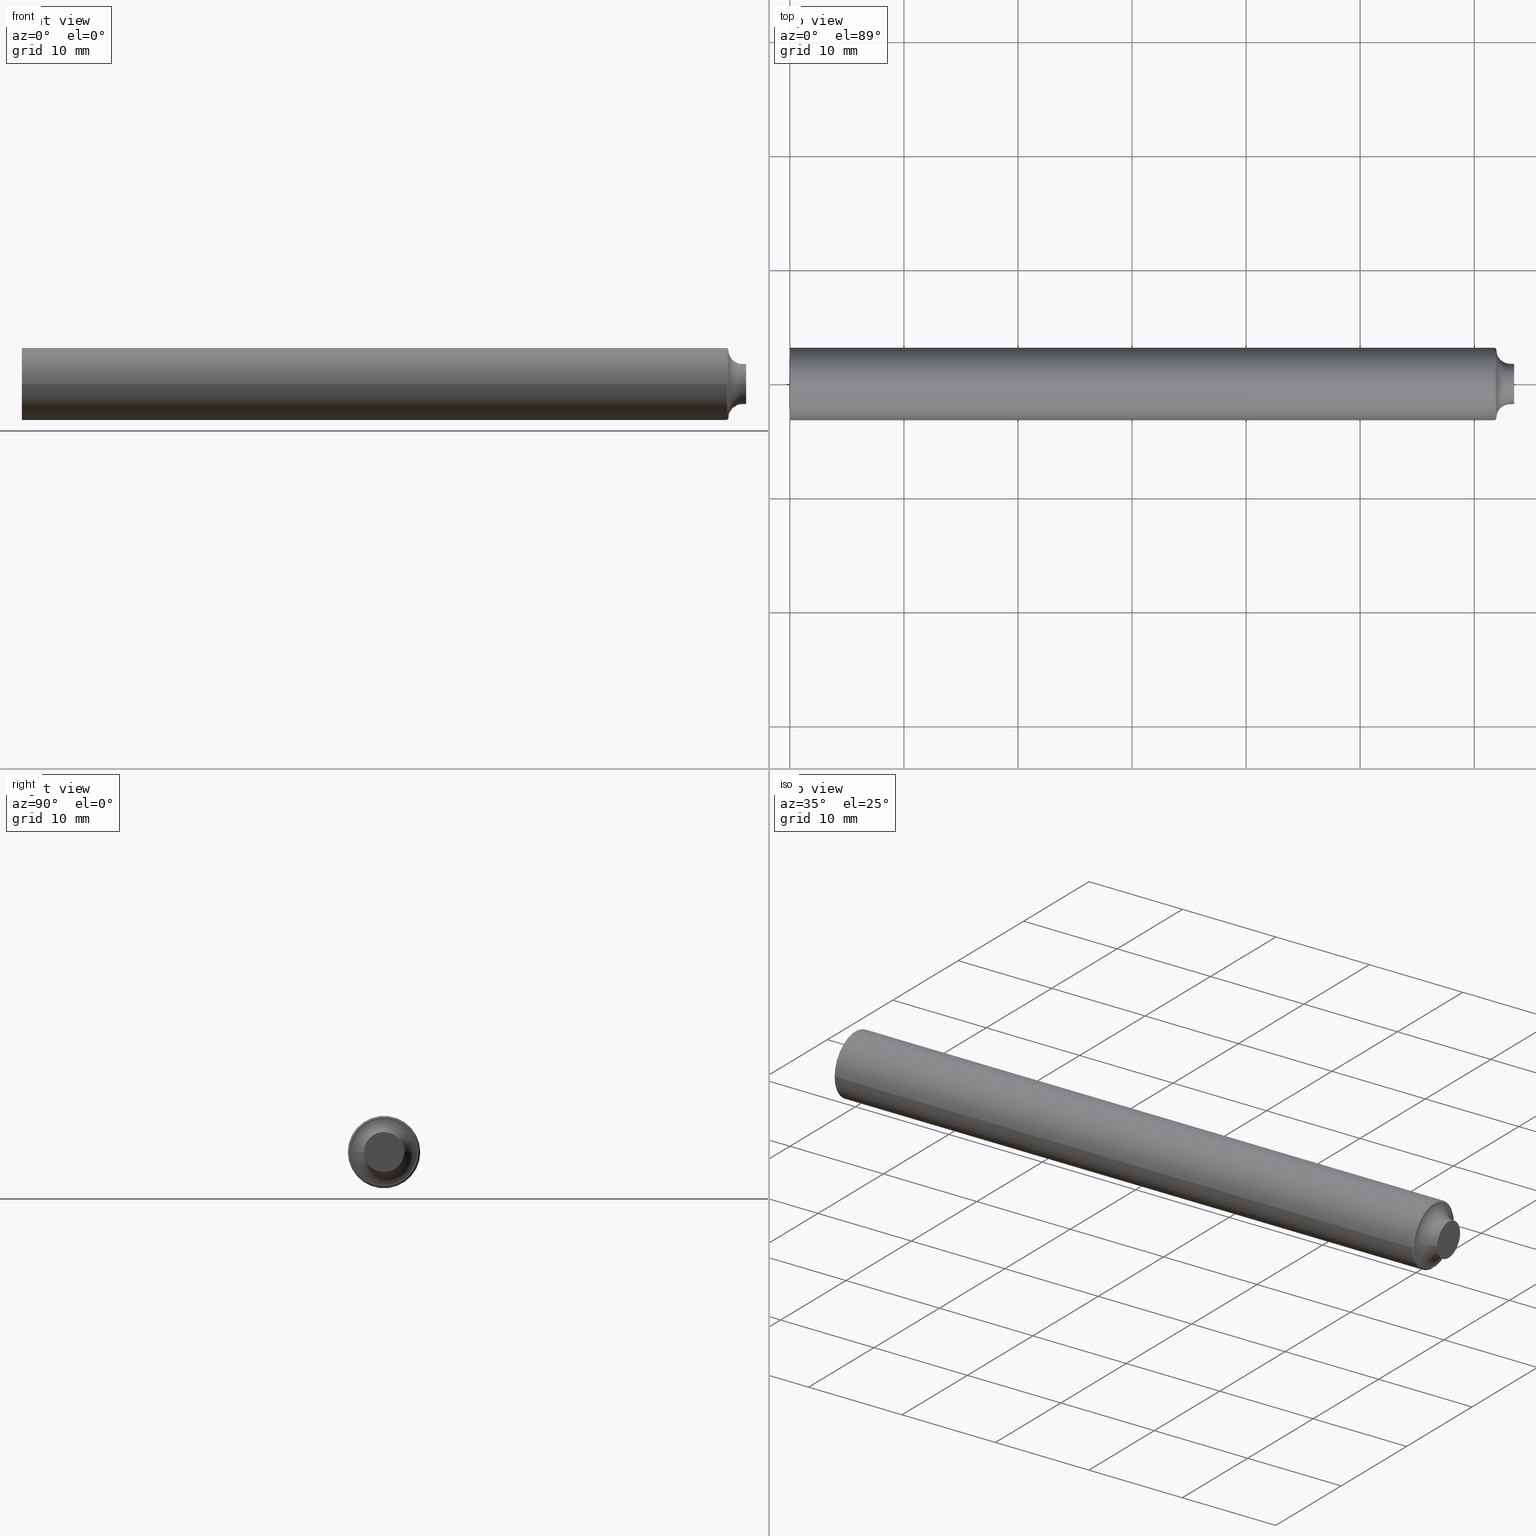
[diagram: canonical four-view strip — front | top / right | iso, engineering-drawing reading convention]
A machine part, canonical four-view strip (front | top / right | iso — engineering-drawing reading convention). The complete STEP part file that produces these views, byte-faithful:
ISO-10303-21;
HEADER;
FILE_DESCRIPTION (( 'STEP AP214' ),
    '1' );
FILE_NAME ('CR250046.step',
    '2025-08-29T21:05:24',
    ( '' ),
    ( '' ),
    'SwSTEP 2.0',
    'SolidWorks 2024',
    '' );
FILE_SCHEMA (( 'AUTOMOTIVE_DESIGN' ));
ENDSEC;

DATA;
#1 = FACE_OUTER_BOUND ( 'NONE', #297, .T. ) ;
#2 = DIRECTION ( 'NONE',  ( -1.000000000000000000, -4.887607864318309822E-21, -0.000000000000000000 ) ) ;
#3 = EDGE_CURVE ( 'NONE', #325, #163, #84, .T. ) ;
#4 = DIRECTION ( 'NONE',  ( -1.000000000000000000, -4.887607864318309822E-21, -0.000000000000000000 ) ) ;
#5 = DIRECTION ( 'NONE',  ( 0.000000000000000000, -1.000000000000000000, 0.000000000000000000 ) ) ;
#6 = DIRECTION ( 'NONE',  ( -1.000000000000000000, -4.887607864318309822E-21, -0.000000000000000000 ) ) ;
#7 = VECTOR ( 'NONE', #309, 39.37007874015748854 ) ;
#8 = EDGE_CURVE ( 'NONE', #266, #131, #232, .T. ) ;
#9 = DIRECTION ( 'NONE',  ( -0.9986295347545737222, -0.05233595624294518078, 0.000000000000000000 ) ) ;
#10 = DIRECTION ( 'NONE',  ( 0.000000000000000000, -1.000000000000000000, 0.000000000000000000 ) ) ;
#11 = FILL_AREA_STYLE_COLOUR ( '', #117 ) ;
#12 = PRODUCT_RELATED_PRODUCT_CATEGORY ( 'part', '', ( #256 ) ) ;
#13 = APPLICATION_PROTOCOL_DEFINITION ( 'draft international standard', 'automotive_design', 1998, #203 ) ;
#14 = VERTEX_POINT ( 'NONE', #148 ) ;
#15 = DIRECTION ( 'NONE',  ( 0.000000000000000000, 0.000000000000000000, 1.000000000000000000 ) ) ;
#16 = ORIENTED_EDGE ( 'NONE', *, *, #179, .F. ) ;
#17 =( NAMED_UNIT ( * ) PLANE_ANGLE_UNIT ( ) SI_UNIT ( $, .RADIAN. ) );
#18 = ORIENTED_EDGE ( 'NONE', *, *, #22, .T. ) ;
#19 = CARTESIAN_POINT ( 'NONE',  ( 2.433660895705829663, -0.1250000000000000000, 0.000000000000000000 ) ) ;
#20 = CARTESIAN_POINT ( 'NONE',  ( 2.500000000000000000, 1.221901966079577606E-20, 0.000000000000000000 ) ) ;
#21 = CONICAL_SURFACE ( 'NONE', #208, 0.1135295046115351730, 1.518436449235101682 ) ;
#22 = EDGE_CURVE ( 'NONE', #324, #172, #259, .T. ) ;
#23 = FACE_OUTER_BOUND ( 'NONE', #223, .T. ) ;
#24 = DIRECTION ( 'NONE',  ( -0.05233595624290892506, 0.9986295347545757206, 1.222968463271201625E-16 ) ) ;
#25 = CARTESIAN_POINT ( 'NONE',  ( 2.482529504611534765, 0.07000000000000006217, 8.572527594031479661E-18 ) ) ;
#26 = AXIS2_PLACEMENT_3D ( 'NONE', #168, #33, #5 ) ;
#27 = MANIFOLD_SOLID_BREP ( 'Revolve1', #331 ) ;
#28 = DIRECTION ( 'NONE',  ( 0.000000000000000000, -1.000000000000000000, 0.000000000000000000 ) ) ;
#29 = CARTESIAN_POINT ( 'NONE',  ( 2.438660895705829557, 1.191921817225734586E-20, 0.000000000000000000 ) ) ;
#30 = DIRECTION ( 'NONE',  ( -1.000000000000000000, -4.887607864318309822E-21, -0.000000000000000000 ) ) ;
#31 = EDGE_CURVE ( 'NONE', #82, #73, #79, .T. ) ;
#32 = AXIS2_PLACEMENT_3D ( 'NONE', #45, #146, #250 ) ;
#33 = DIRECTION ( 'NONE',  ( -1.000000000000000000, -4.887607864318309822E-21, -0.000000000000000000 ) ) ;
#34 = LINE ( 'NONE', #310, #77 ) ;
#35 = CARTESIAN_POINT ( 'NONE',  ( 2.500000000000000000, 1.221901966079577606E-20, 0.000000000000000000 ) ) ;
#36 = ADVANCED_FACE ( 'NONE', ( #181 ), #118, .T. ) ;
#37 = ORIENTED_EDGE ( 'NONE', *, *, #333, .T. ) ;
#38 = CIRCLE ( 'NONE', #54, 0.1199999999999998984 ) ;
#39 = DIRECTION ( 'NONE',  ( 0.000000000000000000, -1.000000000000000000, 0.000000000000000000 ) ) ;
#40 = DIRECTION ( 'NONE',  ( -1.000000000000000000, -4.887607864318309822E-21, -0.000000000000000000 ) ) ;
#41 = ORIENTED_EDGE ( 'NONE', *, *, #249, .T. ) ;
#42 = EDGE_CURVE ( 'NONE', #131, #128, #178, .T. ) ;
#43 = CARTESIAN_POINT ( 'NONE',  ( 2.484936958598710444, 0.1159369585987104073, 1.419818252507899033E-17 ) ) ;
#44 = ORIENTED_EDGE ( 'NONE', *, *, #127, .T. ) ;
#45 = CARTESIAN_POINT ( 'NONE',  ( 2.433660895705829663, 1.189478013293575589E-20, 0.000000000000000000 ) ) ;
#46 = ADVANCED_FACE ( 'NONE', ( #1 ), #298, .T. ) ;
#47 = ORIENTED_EDGE ( 'NONE', *, *, #22, .F. ) ;
#48 = DIRECTION ( 'NONE',  ( 0.000000000000000000, -1.000000000000000000, 0.000000000000000000 ) ) ;
#49 = AXIS2_PLACEMENT_3D ( 'NONE', #180, #183, #136 ) ;
#50 = DIRECTION ( 'NONE',  ( -1.000000000000000000, -4.887607864318309822E-21, -0.000000000000000000 ) ) ;
#51 = EDGE_CURVE ( 'NONE', #14, #163, #260, .T. ) ;
#52 = PRODUCT_DEFINITION_CONTEXT ( 'detailed design', #203, 'design' ) ;
#53 = CARTESIAN_POINT ( 'NONE',  ( 2.438660895705829557, 0.1199999999999998984, 1.469576158976822752E-17 ) ) ;
#54 = AXIS2_PLACEMENT_3D ( 'NONE', #277, #50, #279 ) ;
#55 = CONICAL_SURFACE ( 'NONE', #251, 0.1199999999999998984, 0.7853981633974500554 ) ;
#56 = CIRCLE ( 'NONE', #245, 0.1250000000000000000 ) ;
#57 = DIRECTION ( 'NONE',  ( 4.887607864318309822E-21, -1.000000000000000000, 0.000000000000000000 ) ) ;
#58 = CARTESIAN_POINT ( 'NONE',  ( 2.500000000000000000, -0.06908441013371593997, 0.000000000000000000 ) ) ;
#59 = ORIENTED_EDGE ( 'NONE', *, *, #96, .F. ) ;
#60 = DIRECTION ( 'NONE',  ( -1.000000000000000000, -4.887607864318309822E-21, -0.000000000000000000 ) ) ;
#61 = DIRECTION ( 'NONE',  ( 1.000000000000000000, 4.887607864318309822E-21, 0.000000000000000000 ) ) ;
#62 = CONICAL_SURFACE ( 'NONE', #169, 0.06908441013371593997, 0.05235987755983124992 ) ;
#63 = EDGE_LOOP ( 'NONE', ( #204, #95, #197, #323 ) ) ;
#64 = EDGE_CURVE ( 'NONE', #172, #324, #98, .T. ) ;
#65 = ORIENTED_EDGE ( 'NONE', *, *, #295, .F. ) ;
#66 = FACE_OUTER_BOUND ( 'NONE', #103, .T. ) ;
#67 = AXIS2_PLACEMENT_3D ( 'NONE', #307, #233, #156 ) ;
#68 =( GEOMETRIC_REPRESENTATION_CONTEXT ( 3 ) GLOBAL_UNCERTAINTY_ASSIGNED_CONTEXT ( ( #89 ) ) GLOBAL_UNIT_ASSIGNED_CONTEXT ( ( #71, #17, #94 ) ) REPRESENTATION_CONTEXT ( 'NONE', 'WORKASPACE' ) );
#69 = ORIENTED_EDGE ( 'NONE', *, *, #70, .T. ) ;
#70 = EDGE_CURVE ( 'NONE', #128, #14, #38, .T. ) ;
#71 =( CONVERSION_BASED_UNIT ( 'INCH', #198 ) LENGTH_UNIT ( ) NAMED_UNIT ( #205 ) );
#72 = ORIENTED_EDGE ( 'NONE', *, *, #127, .F. ) ;
#73 = VERTEX_POINT ( 'NONE', #25 ) ;
#74 = LINE ( 'NONE', #258, #272 ) ;
#75 = PRODUCT_DEFINITION ( 'UNKNOWN', '', #99, #52 ) ;
#76 = VECTOR ( 'NONE', #288, 39.37007874015748854 ) ;
#77 = VECTOR ( 'NONE', #216, 39.37007874015748854 ) ;
#78 =( NAMED_UNIT ( * ) SI_UNIT ( $, .STERADIAN. ) SOLID_ANGLE_UNIT ( ) );
#79 = CIRCLE ( 'NONE', #320, 0.07000000000000006217 ) ;
#80 =( LENGTH_UNIT ( ) NAMED_UNIT ( * ) SI_UNIT ( $, .METRE. ) );
#81 = FACE_OUTER_BOUND ( 'NONE', #139, .T. ) ;
#82 = VERTEX_POINT ( 'NONE', #133 ) ;
#83 = DIRECTION ( 'NONE',  ( 4.887607864318309822E-21, -1.000000000000000000, 0.000000000000000000 ) ) ;
#84 = CIRCLE ( 'NONE', #32, 0.1250000000000000000 ) ;
#85 = DIRECTION ( 'NONE',  ( 4.887607864318309822E-21, -1.000000000000000000, 0.000000000000000000 ) ) ;
#86 = ORIENTED_EDGE ( 'NONE', *, *, #51, .F. ) ;
#87 = DIRECTION ( 'NONE',  ( 4.887607864318309822E-21, -1.000000000000000000, 0.000000000000000000 ) ) ;
#88 = FACE_OUTER_BOUND ( 'NONE', #202, .T. ) ;
#89 = UNCERTAINTY_MEASURE_WITH_UNIT (LENGTH_MEASURE( 1.000000000000000082E-05 ), #71, 'distance_accuracy_value', 'NONE');
#90 = EDGE_CURVE ( 'NONE', #328, #177, #292, .T. ) ;
#91 = AXIS2_PLACEMENT_3D ( 'NONE', #97, #40, #10 ) ;
#92 = ORIENTED_EDGE ( 'NONE', *, *, #96, .T. ) ;
#93 = ORIENTED_EDGE ( 'NONE', *, *, #42, .F. ) ;
#94 =( NAMED_UNIT ( * ) SI_UNIT ( $, .STERADIAN. ) SOLID_ANGLE_UNIT ( ) );
#95 = ORIENTED_EDGE ( 'NONE', *, *, #295, .T. ) ;
#96 = EDGE_CURVE ( 'NONE', #14, #128, #221, .T. ) ;
#97 = CARTESIAN_POINT ( 'NONE',  ( 2.439000000000000057, 1.192087558107235888E-20, 0.000000000000000000 ) ) ;
#98 = CIRCLE ( 'NONE', #49, 0.06908441013371593997 ) ;
#99 = PRODUCT_DEFINITION_FORMATION_WITH_SPECIFIED_SOURCE ( 'ANY', '', #256, .NOT_KNOWN. ) ;
#100 = EDGE_LOOP ( 'NONE', ( #72, #269, #286, #59 ) ) ;
#101 = AXIS2_PLACEMENT_3D ( 'NONE', #20, #275, #48 ) ;
#102 = CARTESIAN_POINT ( 'NONE',  ( 2.500000000000000000, 0.06908441013371593997, 8.516463884077649517E-18 ) ) ;
#103 = EDGE_LOOP ( 'NONE', ( #248, #316, #195, #273 ) ) ;
#104 = ADVANCED_BREP_SHAPE_REPRESENTATION ( 'CR250046', ( #27, #151 ), #68 ) ;
#105 = DIRECTION ( 'NONE',  ( 4.887607864318309822E-21, -1.000000000000000000, 0.000000000000000000 ) ) ;
#106 = ADVANCED_FACE ( 'NONE', ( #23 ), #134, .T. ) ;
#107 = CARTESIAN_POINT ( 'NONE',  ( 0.000000000000000000, 0.000000000000000000, 0.000000000000000000 ) ) ;
#108 = AXIS2_PLACEMENT_3D ( 'NONE', #137, #2, #162 ) ;
#109 = DIRECTION ( 'NONE',  ( -1.000000000000000000, -4.887607864318309822E-21, -0.000000000000000000 ) ) ;
#110 = DIRECTION ( 'NONE',  ( -1.000000000000000000, -4.887607864318309822E-21, -0.000000000000000000 ) ) ;
#111 = CARTESIAN_POINT ( 'NONE',  ( 2.439000000000000057, -0.1135295046115351730, 0.000000000000000000 ) ) ;
#112 = CARTESIAN_POINT ( 'NONE',  ( 2.484936958598710444, 0.000000000000000000, 0.000000000000000000 ) ) ;
#113 = ORIENTED_EDGE ( 'NONE', *, *, #242, .T. ) ;
#114 = DIRECTION ( 'NONE',  ( -1.000000000000000000, -4.887607864318309822E-21, -0.000000000000000000 ) ) ;
#115 = ORIENTED_EDGE ( 'NONE', *, *, #90, .T. ) ;
#116 = CARTESIAN_POINT ( 'NONE',  ( 6.109509830397887278E-22, -0.1250000000000000000, 0.000000000000000000 ) ) ;
#117 = COLOUR_RGB ( '',0.7921568627450980005, 0.8196078431372548767, 0.9333333333333333481 ) ;
#118 = CONICAL_SURFACE ( 'NONE', #67, 0.1135295046115351730, 1.518436449235101682 ) ;
#119 = CARTESIAN_POINT ( 'NONE',  ( 2.439000000000000057, 0.1135295046115346596, 1.390335444313005994E-17 ) ) ;
#120 = CARTESIAN_POINT ( 'NONE',  ( -6.109509830397887278E-22, 0.1250000000000000000, 1.530808498934191509E-17 ) ) ;
#121 = ORIENTED_EDGE ( 'NONE', *, *, #51, .T. ) ;
#122 = FILL_AREA_STYLE ('',( #11 ) ) ;
#123 = CARTESIAN_POINT ( 'NONE',  ( 2.484936958598710444, 0.000000000000000000, 0.000000000000000000 ) ) ;
#124 = TOROIDAL_SURFACE ( 'NONE', #215, 0.1159369585987104073, 0.04599999999999998535 ) ;
#125 = ORIENTED_EDGE ( 'NONE', *, *, #31, .F. ) ;
#126 = SHAPE_DEFINITION_REPRESENTATION ( #220, #104 ) ;
#127 = EDGE_CURVE ( 'NONE', #266, #14, #74, .T. ) ;
#128 = VERTEX_POINT ( 'NONE', #330 ) ;
#129 = ORIENTED_EDGE ( 'NONE', *, *, #249, .F. ) ;
#130 = TOROIDAL_SURFACE ( 'NONE', #173, 0.1159369585987104073, 0.04599999999999998535 ) ;
#131 = VERTEX_POINT ( 'NONE', #207 ) ;
#132 = ADVANCED_FACE ( 'NONE', ( #184 ), #326, .T. ) ;
#133 = CARTESIAN_POINT ( 'NONE',  ( 2.482529504611534765, -0.07000000000000006217, 0.000000000000000000 ) ) ;
#134 = CYLINDRICAL_SURFACE ( 'NONE', #214, 0.1250000000000000000 ) ;
#135 = CIRCLE ( 'NONE', #26, 0.07000000000000006217 ) ;
#136 = DIRECTION ( 'NONE',  ( 0.000000000000000000, -1.000000000000000000, 0.000000000000000000 ) ) ;
#137 = CARTESIAN_POINT ( 'NONE',  ( 2.433660895705829663, 1.189478013293575589E-20, 0.000000000000000000 ) ) ;
#138 = CARTESIAN_POINT ( 'NONE',  ( 0.000000000000000000, 0.1250000000000000000, 1.530808498934191509E-17 ) ) ;
#139 = EDGE_LOOP ( 'NONE', ( #141, #47 ) ) ;
#140 = DIRECTION ( 'NONE',  ( 0.000000000000000000, -1.000000000000000000, 0.000000000000000000 ) ) ;
#141 = ORIENTED_EDGE ( 'NONE', *, *, #64, .F. ) ;
#142 = LINE ( 'NONE', #120, #160 ) ;
#143 = AXIS2_PLACEMENT_3D ( 'NONE', #187, #61, #243 ) ;
#144 = LINE ( 'NONE', #116, #182 ) ;
#145 = ADVANCED_FACE ( 'NONE', ( #264 ), #130, .F. ) ;
#146 = DIRECTION ( 'NONE',  ( -1.000000000000000000, -4.887607864318309822E-21, -0.000000000000000000 ) ) ;
#147 = ORIENTED_EDGE ( 'NONE', *, *, #90, .F. ) ;
#148 = CARTESIAN_POINT ( 'NONE',  ( 2.438660895705829557, 0.1199999999999998845, 1.469576158976822443E-17 ) ) ;
#149 = DIRECTION ( 'NONE',  ( -1.000000000000000000, -4.887607864318309822E-21, -0.000000000000000000 ) ) ;
#150 = STYLED_ITEM ( 'NONE', ( #332 ), #27 ) ;
#151 = AXIS2_PLACEMENT_3D ( 'NONE', #170, #15, #196 ) ;
#152 = CARTESIAN_POINT ( 'NONE',  ( 2.482529504611534765, 1.213363073014157413E-20, 0.000000000000000000 ) ) ;
#153 = ADVANCED_FACE ( 'NONE', ( #291 ), #318, .F. ) ;
#154 = UNCERTAINTY_MEASURE_WITH_UNIT (LENGTH_MEASURE( 1.000000000000000082E-05 ), #230, 'distance_accuracy_value', 'NONE');
#155 = CARTESIAN_POINT ( 'NONE',  ( 2.438660895705829557, 1.191921817225734586E-20, 0.000000000000000000 ) ) ;
#156 = DIRECTION ( 'NONE',  ( 0.000000000000000000, -1.000000000000000000, 0.000000000000000000 ) ) ;
#157 = DIRECTION ( 'NONE',  ( -1.000000000000000000, -4.887607864318309822E-21, -0.000000000000000000 ) ) ;
#158 = AXIS2_PLACEMENT_3D ( 'NONE', #29, #110, #28 ) ;
#159 = AXIS2_PLACEMENT_3D ( 'NONE', #43, #296, #225 ) ;
#160 = VECTOR ( 'NONE', #4, 39.37007874015748143 ) ;
#161 = CARTESIAN_POINT ( 'NONE',  ( 2.500000000000000000, 0.06908441013371593997, 0.000000000000000000 ) ) ;
#162 = DIRECTION ( 'NONE',  ( 0.000000000000000000, -1.000000000000000000, 0.000000000000000000 ) ) ;
#163 = VERTEX_POINT ( 'NONE', #165 ) ;
#164 = EDGE_CURVE ( 'NONE', #325, #328, #144, .T. ) ;
#165 = CARTESIAN_POINT ( 'NONE',  ( 2.433660895705829663, 0.1250000000000000000, 1.530808498934191509E-17 ) ) ;
#166 = ORIENTED_EDGE ( 'NONE', *, *, #227, .F. ) ;
#167 = DIRECTION ( 'NONE',  ( -1.000000000000000000, -4.887607864318309822E-21, -0.000000000000000000 ) ) ;
#168 = CARTESIAN_POINT ( 'NONE',  ( 2.482529504611534765, 1.213363073014157413E-20, 0.000000000000000000 ) ) ;
#169 = AXIS2_PLACEMENT_3D ( 'NONE', #35, #213, #241 ) ;
#170 = CARTESIAN_POINT ( 'NONE',  ( 0.000000000000000000, 0.000000000000000000, 0.000000000000000000 ) ) ;
#171 = SURFACE_SIDE_STYLE ('',( #321 ) ) ;
#172 = VERTEX_POINT ( 'NONE', #287 ) ;
#173 = AXIS2_PLACEMENT_3D ( 'NONE', #112, #217, #312 ) ;
#174 = PRODUCT_CONTEXT ( 'NONE', #236, 'mechanical' ) ;
#175 = ORIENTED_EDGE ( 'NONE', *, *, #70, .F. ) ;
#176 = ORIENTED_EDGE ( 'NONE', *, *, #209, .T. ) ;
#177 = VERTEX_POINT ( 'NONE', #138 ) ;
#178 = LINE ( 'NONE', #111, #314 ) ;
#179 = EDGE_CURVE ( 'NONE', #73, #82, #135, .T. ) ;
#180 = CARTESIAN_POINT ( 'NONE',  ( 2.500000000000000000, 1.221901966079577606E-20, 0.000000000000000000 ) ) ;
#181 = FACE_OUTER_BOUND ( 'NONE', #302, .T. ) ;
#182 = VECTOR ( 'NONE', #167, 39.37007874015748143 ) ;
#183 = DIRECTION ( 'NONE',  ( -1.000000000000000000, -4.887607864318309822E-21, -0.000000000000000000 ) ) ;
#184 = FACE_OUTER_BOUND ( 'NONE', #311, .T. ) ;
#185 = ADVANCED_FACE ( 'NONE', ( #285 ), #21, .T. ) ;
#186 = ORIENTED_EDGE ( 'NONE', *, *, #3, .F. ) ;
#187 = CARTESIAN_POINT ( 'NONE',  ( 3.054754915198943639E-22, 1.493044414709136851E-42, 0.000000000000000000 ) ) ;
#188 = AXIS2_PLACEMENT_3D ( 'NONE', #199, #149, #255 ) ;
#189 = CIRCLE ( 'NONE', #244, 0.04599999999999999922 ) ;
#190 = LINE ( 'NONE', #210, #76 ) ;
#191 = ADVANCED_FACE ( 'NONE', ( #88 ), #62, .T. ) ;
#192 = PLANE ( 'NONE',  #327 ) ;
#193 = FACE_OUTER_BOUND ( 'NONE', #63, .T. ) ;
#194 =( GEOMETRIC_REPRESENTATION_CONTEXT ( 3 ) GLOBAL_UNCERTAINTY_ASSIGNED_CONTEXT ( ( #154 ) ) GLOBAL_UNIT_ASSIGNED_CONTEXT ( ( #230, #305, #78 ) ) REPRESENTATION_CONTEXT ( 'NONE', 'WORKASPACE' ) );
#195 = ORIENTED_EDGE ( 'NONE', *, *, #306, .T. ) ;
#196 = DIRECTION ( 'NONE',  ( 1.000000000000000000, 0.000000000000000000, 0.000000000000000000 ) ) ;
#197 = ORIENTED_EDGE ( 'NONE', *, *, #164, .T. ) ;
#198 = LENGTH_MEASURE_WITH_UNIT ( LENGTH_MEASURE( 0.02539999999999999897 ), #300 );
#199 = CARTESIAN_POINT ( 'NONE',  ( 2.439000000000000057, 1.192087558107235888E-20, 0.000000000000000000 ) ) ;
#200 = AXIS2_PLACEMENT_3D ( 'NONE', #284, #234, #57 ) ;
#201 = CIRCLE ( 'NONE', #108, 0.1250000000000000000 ) ;
#202 = EDGE_LOOP ( 'NONE', ( #253, #294, #125, #229 ) ) ;
#203 = APPLICATION_CONTEXT ( 'automotive_design' ) ;
#204 = ORIENTED_EDGE ( 'NONE', *, *, #235, .F. ) ;
#205 = DIMENSIONAL_EXPONENTS ( 1.000000000000000000, 0.000000000000000000, 0.000000000000000000, 0.000000000000000000, 0.000000000000000000, 0.000000000000000000, 0.000000000000000000 ) ;
#206 = SURFACE_STYLE_USAGE ( .BOTH. , #171 ) ;
#207 = CARTESIAN_POINT ( 'NONE',  ( 2.439000000000000057, -0.1135295046115346596, 0.000000000000000000 ) ) ;
#208 = AXIS2_PLACEMENT_3D ( 'NONE', #265, #114, #240 ) ;
#209 = EDGE_CURVE ( 'NONE', #172, #82, #315, .T. ) ;
#210 = CARTESIAN_POINT ( 'NONE',  ( 2.500000000000000000, 0.06908441013371593997, 8.460400174123819374E-18 ) ) ;
#211 = EDGE_LOOP ( 'NONE', ( #271, #274, #252, #224 ) ) ;
#212 = CARTESIAN_POINT ( 'NONE',  ( 0.000000000000000000, 0.000000000000000000, 0.000000000000000000 ) ) ;
#213 = DIRECTION ( 'NONE',  ( -1.000000000000000000, -4.887607864318309822E-21, -0.000000000000000000 ) ) ;
#214 = AXIS2_PLACEMENT_3D ( 'NONE', #107, #329, #105 ) ;
#215 = AXIS2_PLACEMENT_3D ( 'NONE', #123, #254, #218 ) ;
#216 = DIRECTION ( 'NONE',  ( -0.7071067811865462405, -0.7071067811865486830, 0.000000000000000000 ) ) ;
#217 = DIRECTION ( 'NONE',  ( -1.000000000000000000, -4.887607864318309822E-21, -0.000000000000000000 ) ) ;
#218 = DIRECTION ( 'NONE',  ( 4.887607864318309822E-21, -1.000000000000000000, 0.000000000000000000 ) ) ;
#219 = ORIENTED_EDGE ( 'NONE', *, *, #235, .T. ) ;
#220 = PRODUCT_DEFINITION_SHAPE ( 'NONE', 'NONE',  #75 ) ;
#221 = CIRCLE ( 'NONE', #261, 0.1199999999999998984 ) ;
#222 = ADVANCED_FACE ( 'NONE', ( #193 ), #268, .T. ) ;
#223 = EDGE_LOOP ( 'NONE', ( #301, #219, #147, #293 ) ) ;
#224 = ORIENTED_EDGE ( 'NONE', *, *, #306, .F. ) ;
#225 = DIRECTION ( 'NONE',  ( 0.000000000000000000, -1.000000000000000000, -1.224646799147352961E-16 ) ) ;
#226 = EDGE_LOOP ( 'NONE', ( #86, #92, #41, #65 ) ) ;
#227 = EDGE_CURVE ( 'NONE', #324, #73, #190, .T. ) ;
#228 = APPLICATION_PROTOCOL_DEFINITION ( 'draft international standard', 'automotive_design', 1998, #236 ) ;
#229 = ORIENTED_EDGE ( 'NONE', *, *, #209, .F. ) ;
#230 =( CONVERSION_BASED_UNIT ( 'INCH', #231 ) LENGTH_UNIT ( ) NAMED_UNIT ( #276 ) );
#231 = LENGTH_MEASURE_WITH_UNIT ( LENGTH_MEASURE( 0.02539999999999999897 ), #80 );
#232 = CIRCLE ( 'NONE', #188, 0.1135295046115351730 ) ;
#233 = DIRECTION ( 'NONE',  ( -1.000000000000000000, -4.887607864318309822E-21, -0.000000000000000000 ) ) ;
#234 = DIRECTION ( 'NONE',  ( -1.000000000000000000, -4.887607864318309822E-21, -0.000000000000000000 ) ) ;
#235 = EDGE_CURVE ( 'NONE', #163, #177, #142, .T. ) ;
#236 = APPLICATION_CONTEXT ( 'automotive_design' ) ;
#237 = CARTESIAN_POINT ( 'NONE',  ( 6.109509830397887278E-22, 2.986088829418273701E-42, 0.000000000000000000 ) ) ;
#238 = VECTOR ( 'NONE', #9, 39.37007874015748854 ) ;
#239 = CIRCLE ( 'NONE', #91, 0.1135295046115351730 ) ;
#240 = DIRECTION ( 'NONE',  ( 0.000000000000000000, -1.000000000000000000, 0.000000000000000000 ) ) ;
#241 = DIRECTION ( 'NONE',  ( 0.000000000000000000, -1.000000000000000000, 0.000000000000000000 ) ) ;
#242 = EDGE_CURVE ( 'NONE', #177, #328, #56, .T. ) ;
#243 = DIRECTION ( 'NONE',  ( -4.887607864318309822E-21, 1.000000000000000000, 0.000000000000000000 ) ) ;
#244 = AXIS2_PLACEMENT_3D ( 'NONE', #247, #322, #319 ) ;
#245 = AXIS2_PLACEMENT_3D ( 'NONE', #237, #6, #83 ) ;
#246 = DIRECTION ( 'NONE',  ( -1.000000000000000000, -4.887607864318309822E-21, -0.000000000000000000 ) ) ;
#247 = CARTESIAN_POINT ( 'NONE',  ( 2.484936958598710444, -0.1159369585987104073, 0.000000000000000000 ) ) ;
#248 = ORIENTED_EDGE ( 'NONE', *, *, #303, .F. ) ;
#249 = EDGE_CURVE ( 'NONE', #128, #325, #34, .T. ) ;
#250 = DIRECTION ( 'NONE',  ( 0.000000000000000000, -1.000000000000000000, 0.000000000000000000 ) ) ;
#251 = AXIS2_PLACEMENT_3D ( 'NONE', #263, #30, #140 ) ;
#252 = ORIENTED_EDGE ( 'NONE', *, *, #179, .T. ) ;
#253 = ORIENTED_EDGE ( 'NONE', *, *, #64, .T. ) ;
#254 = DIRECTION ( 'NONE',  ( -1.000000000000000000, -4.887607864318309822E-21, -0.000000000000000000 ) ) ;
#255 = DIRECTION ( 'NONE',  ( 0.000000000000000000, -1.000000000000000000, 0.000000000000000000 ) ) ;
#256 = PRODUCT ( 'CR250046', 'CR250046', '', ( #174 ) ) ;
#257 = DIRECTION ( 'NONE',  ( 0.000000000000000000, -1.000000000000000000, 0.000000000000000000 ) ) ;
#258 = CARTESIAN_POINT ( 'NONE',  ( 2.439000000000000057, 0.1135295046115351730, 1.390335444313012157E-17 ) ) ;
#259 = CIRCLE ( 'NONE', #101, 0.06908441013371593997 ) ;
#260 = LINE ( 'NONE', #53, #7 ) ;
#261 = AXIS2_PLACEMENT_3D ( 'NONE', #155, #157, #257 ) ;
#262 = DIRECTION ( 'NONE',  ( -0.05233595624290892506, -0.9986295347545757206, 0.000000000000000000 ) ) ;
#263 = CARTESIAN_POINT ( 'NONE',  ( 2.438660895705829557, 1.191921817225734586E-20, 0.000000000000000000 ) ) ;
#264 = FACE_OUTER_BOUND ( 'NONE', #211, .T. ) ;
#265 = CARTESIAN_POINT ( 'NONE',  ( 2.439000000000000057, 1.192087558107235888E-20, 0.000000000000000000 ) ) ;
#266 = VERTEX_POINT ( 'NONE', #119 ) ;
#267 = CARTESIAN_POINT ( 'NONE',  ( 2.500000000000000000, 1.221901966079577606E-20, 0.000000000000000000 ) ) ;
#268 = CYLINDRICAL_SURFACE ( 'NONE', #299, 0.1250000000000000000 ) ;
#269 = ORIENTED_EDGE ( 'NONE', *, *, #8, .T. ) ;
#270 = CARTESIAN_POINT ( 'NONE',  ( 1.221901966079577456E-21, -0.1250000000000000000, 0.000000000000000000 ) ) ;
#271 = ORIENTED_EDGE ( 'NONE', *, *, #8, .F. ) ;
#272 = VECTOR ( 'NONE', #24, 39.37007874015748143 ) ;
#273 = ORIENTED_EDGE ( 'NONE', *, *, #31, .T. ) ;
#274 = ORIENTED_EDGE ( 'NONE', *, *, #303, .T. ) ;
#275 = DIRECTION ( 'NONE',  ( -1.000000000000000000, -4.887607864318309822E-21, -0.000000000000000000 ) ) ;
#276 = DIMENSIONAL_EXPONENTS ( 1.000000000000000000, 0.000000000000000000, 0.000000000000000000, 0.000000000000000000, 0.000000000000000000, 0.000000000000000000, 0.000000000000000000 ) ;
#277 = CARTESIAN_POINT ( 'NONE',  ( 2.438660895705829557, 1.191921817225734586E-20, 0.000000000000000000 ) ) ;
#278 = ADVANCED_FACE ( 'NONE', ( #81 ), #192, .F. ) ;
#279 = DIRECTION ( 'NONE',  ( 0.000000000000000000, -1.000000000000000000, 0.000000000000000000 ) ) ;
#280 = PRESENTATION_LAYER_ASSIGNMENT (  '', '', ( #150 ) ) ;
#281 = ADVANCED_FACE ( 'NONE', ( #290 ), #55, .T. ) ;
#282 = CIRCLE ( 'NONE', #159, 0.04599999999999998535 ) ;
#283 = AXIS2_PLACEMENT_3D ( 'NONE', #267, #246, #39 ) ;
#284 = CARTESIAN_POINT ( 'NONE',  ( 6.109509830397887278E-22, 2.986088829418273701E-42, 0.000000000000000000 ) ) ;
#285 = FACE_OUTER_BOUND ( 'NONE', #100, .T. ) ;
#286 = ORIENTED_EDGE ( 'NONE', *, *, #42, .T. ) ;
#287 = CARTESIAN_POINT ( 'NONE',  ( 2.500000000000000000, -0.06908441013371593997, 0.000000000000000000 ) ) ;
#288 = DIRECTION ( 'NONE',  ( -0.9986295347545737222, 0.05233595624294518078, 6.409306129323876575E-18 ) ) ;
#289 = EDGE_LOOP ( 'NONE', ( #115, #113 ) ) ;
#290 = FACE_OUTER_BOUND ( 'NONE', #226, .T. ) ;
#291 = FACE_OUTER_BOUND ( 'NONE', #289, .T. ) ;
#292 = CIRCLE ( 'NONE', #200, 0.1250000000000000000 ) ;
#293 = ORIENTED_EDGE ( 'NONE', *, *, #164, .F. ) ;
#294 = ORIENTED_EDGE ( 'NONE', *, *, #227, .T. ) ;
#295 = EDGE_CURVE ( 'NONE', #163, #325, #201, .T. ) ;
#296 = DIRECTION ( 'NONE',  ( 5.985593326524849363E-37, -1.224646799147353207E-16, 1.000000000000000000 ) ) ;
#297 = EDGE_LOOP ( 'NONE', ( #69, #121, #186, #129 ) ) ;
#298 = CONICAL_SURFACE ( 'NONE', #158, 0.1199999999999998984, 0.7853981633974500554 ) ;
#299 = AXIS2_PLACEMENT_3D ( 'NONE', #212, #60, #85 ) ;
#300 =( LENGTH_UNIT ( ) NAMED_UNIT ( * ) SI_UNIT ( $, .METRE. ) );
#301 = ORIENTED_EDGE ( 'NONE', *, *, #3, .T. ) ;
#302 = EDGE_LOOP ( 'NONE', ( #37, #44, #175, #93 ) ) ;
#303 = EDGE_CURVE ( 'NONE', #266, #73, #282, .T. ) ;
#304 = DIRECTION ( 'NONE',  ( 0.000000000000000000, -1.000000000000000000, 0.000000000000000000 ) ) ;
#305 =( NAMED_UNIT ( * ) PLANE_ANGLE_UNIT ( ) SI_UNIT ( $, .RADIAN. ) );
#306 = EDGE_CURVE ( 'NONE', #131, #82, #189, .T. ) ;
#307 = CARTESIAN_POINT ( 'NONE',  ( 2.439000000000000057, 1.192087558107235888E-20, 0.000000000000000000 ) ) ;
#308 = MECHANICAL_DESIGN_GEOMETRIC_PRESENTATION_REPRESENTATION (  '', ( #150 ), #194 ) ;
#309 = DIRECTION ( 'NONE',  ( -0.7071067811865462405, 0.7071067811865486830, 8.659560562354947649E-17 ) ) ;
#310 = CARTESIAN_POINT ( 'NONE',  ( 2.438660895705829557, -0.1199999999999998984, 0.000000000000000000 ) ) ;
#311 = EDGE_LOOP ( 'NONE', ( #166, #18, #176, #16 ) ) ;
#312 = DIRECTION ( 'NONE',  ( 4.887607864318309822E-21, -1.000000000000000000, 0.000000000000000000 ) ) ;
#313 = ADVANCED_FACE ( 'NONE', ( #66 ), #124, .F. ) ;
#314 = VECTOR ( 'NONE', #262, 39.37007874015748143 ) ;
#315 = LINE ( 'NONE', #58, #238 ) ;
#316 = ORIENTED_EDGE ( 'NONE', *, *, #333, .F. ) ;
#317 = DIRECTION ( 'NONE',  ( -1.000000000000000000, -4.887607864318309822E-21, 0.000000000000000000 ) ) ;
#318 = PLANE ( 'NONE',  #143 ) ;
#319 = DIRECTION ( 'NONE',  ( -1.000000000000000000, 0.000000000000000000, 0.000000000000000000 ) ) ;
#320 = AXIS2_PLACEMENT_3D ( 'NONE', #152, #109, #304 ) ;
#321 = SURFACE_STYLE_FILL_AREA ( #122 ) ;
#322 = DIRECTION ( 'NONE',  ( 0.000000000000000000, 0.000000000000000000, -1.000000000000000000 ) ) ;
#323 = ORIENTED_EDGE ( 'NONE', *, *, #242, .F. ) ;
#324 = VERTEX_POINT ( 'NONE', #102 ) ;
#325 = VERTEX_POINT ( 'NONE', #19 ) ;
#326 = CONICAL_SURFACE ( 'NONE', #283, 0.06908441013371593997, 0.05235987755983124992 ) ;
#327 = AXIS2_PLACEMENT_3D ( 'NONE', #161, #317, #87 ) ;
#328 = VERTEX_POINT ( 'NONE', #270 ) ;
#329 = DIRECTION ( 'NONE',  ( -1.000000000000000000, -4.887607864318309822E-21, -0.000000000000000000 ) ) ;
#330 = CARTESIAN_POINT ( 'NONE',  ( 2.438660895705829557, -0.1199999999999998845, 0.000000000000000000 ) ) ;
#331 = CLOSED_SHELL ( 'NONE', ( #106, #46, #36, #145, #191, #278, #132, #313, #185, #281, #222, #153 ) ) ;
#332 = PRESENTATION_STYLE_ASSIGNMENT (( #206 ) ) ;
#333 = EDGE_CURVE ( 'NONE', #131, #266, #239, .T. ) ;
ENDSEC;
END-ISO-10303-21;
